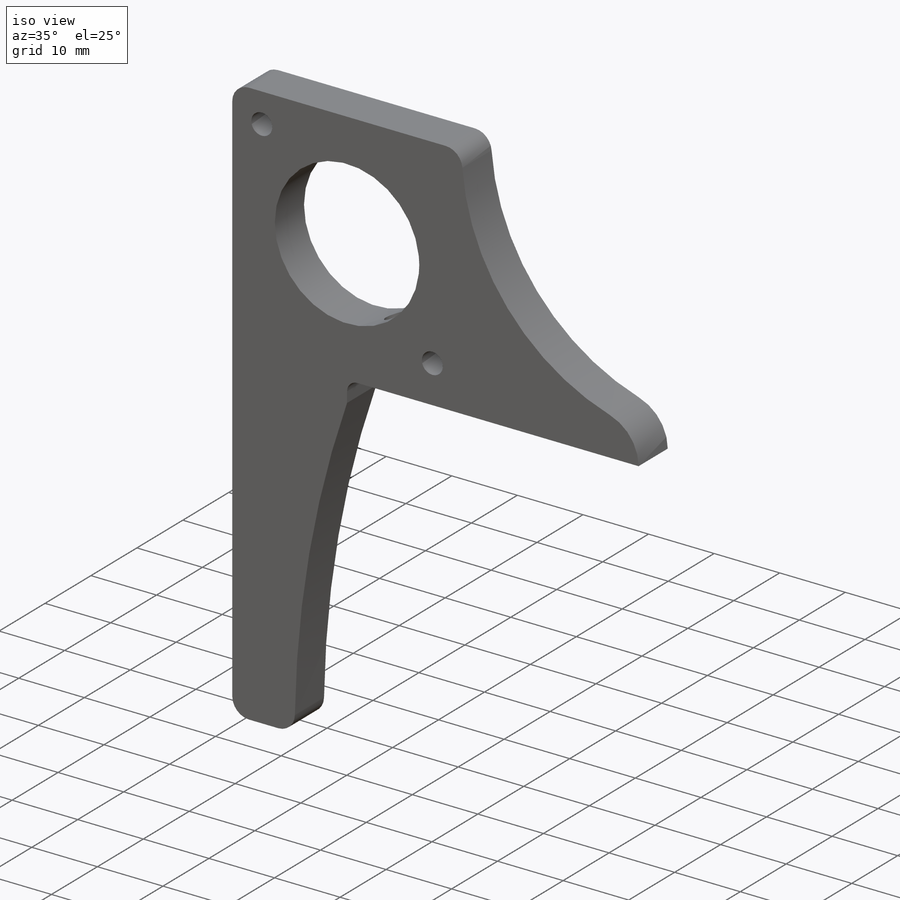
[diagram: iso view]
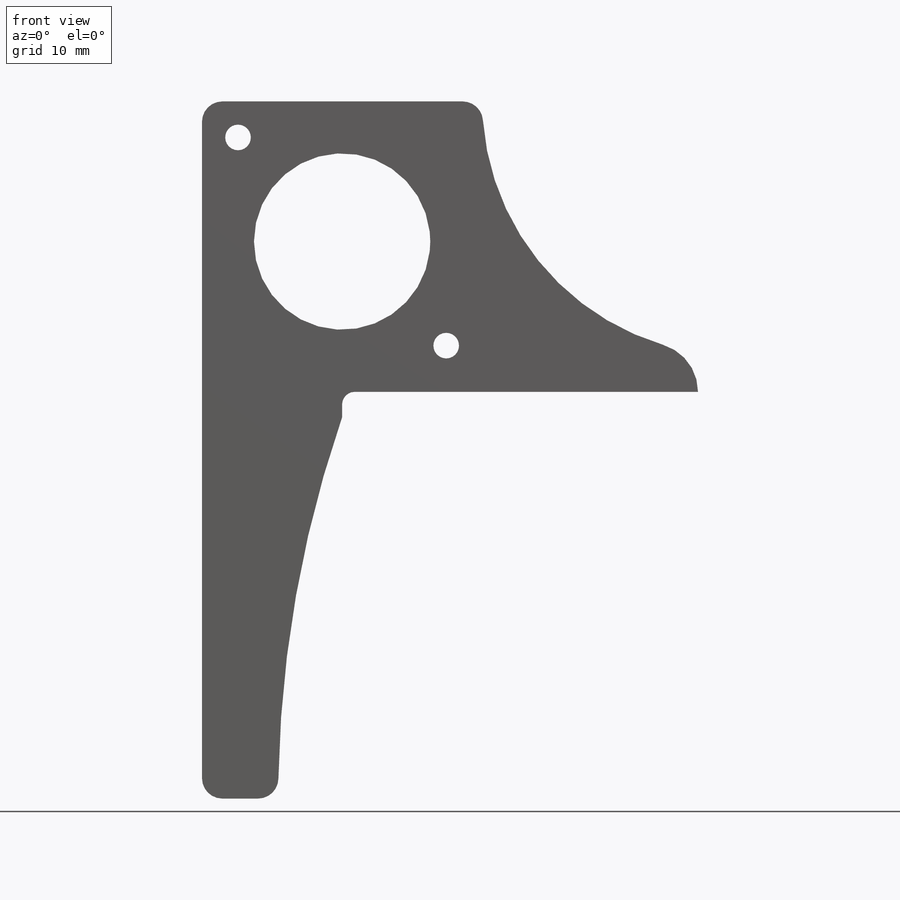
[diagram: front view]
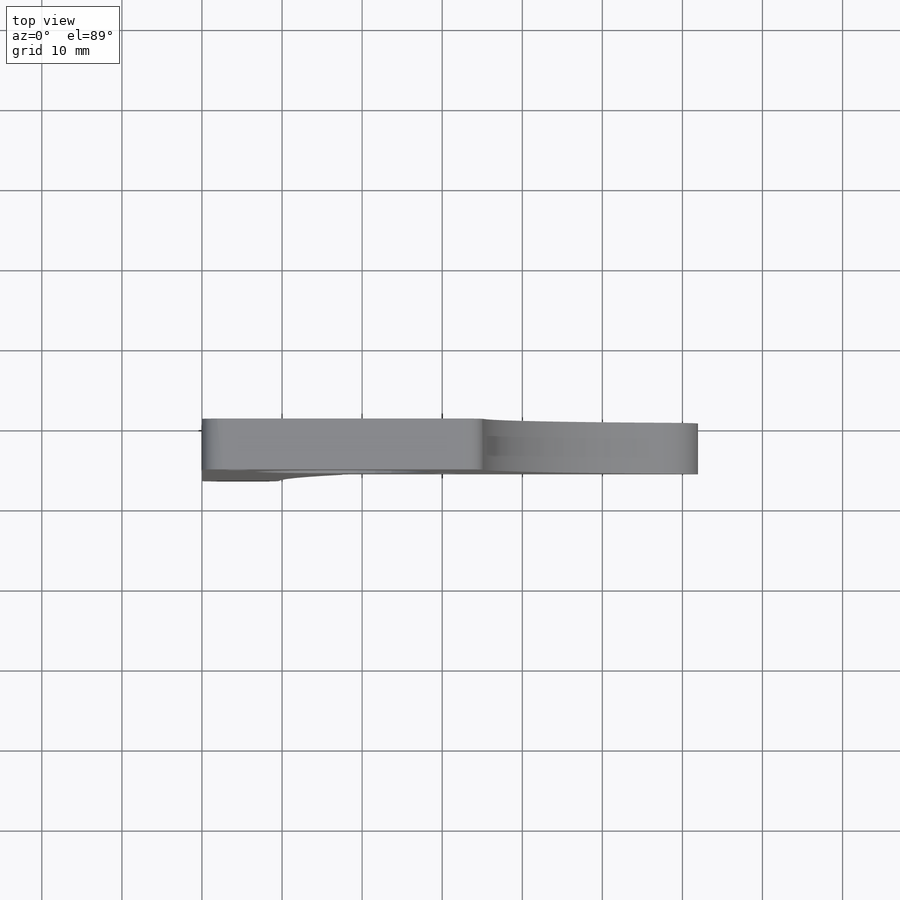
[diagram: top view]
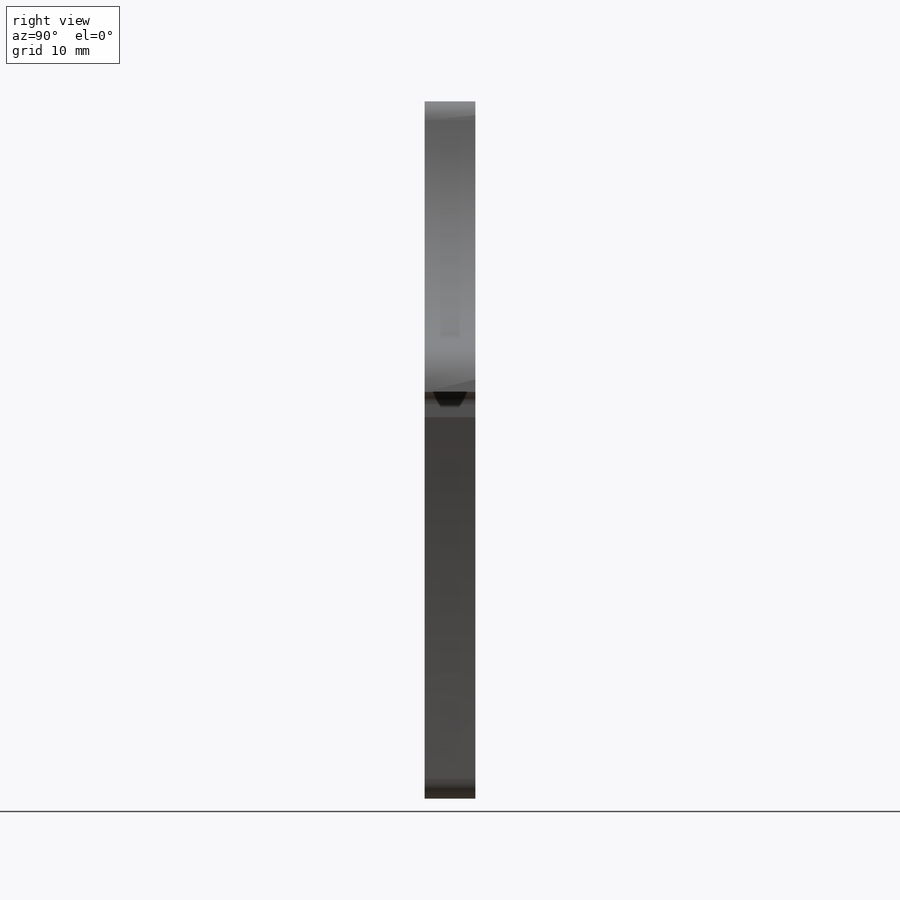
[diagram: right view]
SOLIDWORKS PART (.sldprt)
format: sldprt  version: not decoded by parser v0  size: 229,376 bytes
history: native  units: mm
features: sketch x3, fillet x2, thread x2, material x1, extrude x1, hole x1 (+13 scaffold rows collapsed)
feature tree (23):
  scaffold x13  (default folders/planes/origin — collapsed)
  material  "Material <not specified>"
  sketch  "Sketch1"  dims[c1.D3=2.794mm c1.D4=2.794mm c2.D3=3.2004mm c2.D8=22.0218mm c2.D9=31.75mm c2.D1=25.4mm c2.D2=26.0mm c2.D4=36.27mm c2.D5=35.0mm c2.D6=57.15mm c2.D7=9.525mm c3.D9=76.2mm c3.D6=50.8mm c3.D1=9.525mm c3.D10=3.175mm c3.D11=44.45mm]
  extrude  "Boss-Extrude1"  Depth=6.35mm
  fillet  "Fillet1"  Radius=2.54mm
  hole  "#6-32 Tapped Hole1"  Diameter=2.7051mm Depth=9.38784mm
  sketch  "Sketch4"  dims[c1.D1=5.08mm c1.D2=5.08mm c1.D3=~20.140412mm c2.D2=25.4mm c2.D1=5.08mm]
  sketch  "Sketch3"  dims[hole-wizard template sketch: 47 standard entries collapsed; hole parameters kept: c15.Tap Drill Depth=~9.38784mm c15.D3=~14.816244mm c15.Drill Angle=118.0deg]
  thread  "Hole Thread1"  Diameter=7.0104mm  [1 undecoded]
  thread  "Hole Thread2"  Diameter=7.0104mm  [1 undecoded]
  fillet  "Fillet2"  Radius=1.5875mm
decode coverage: 9 of 9 modeling features carry decoded parameters
note: ~ marks probable driven/reference dimensions
note: 2 parameter values undecoded
note: suppression state not decoded; provenance and decode notes live in map.json
